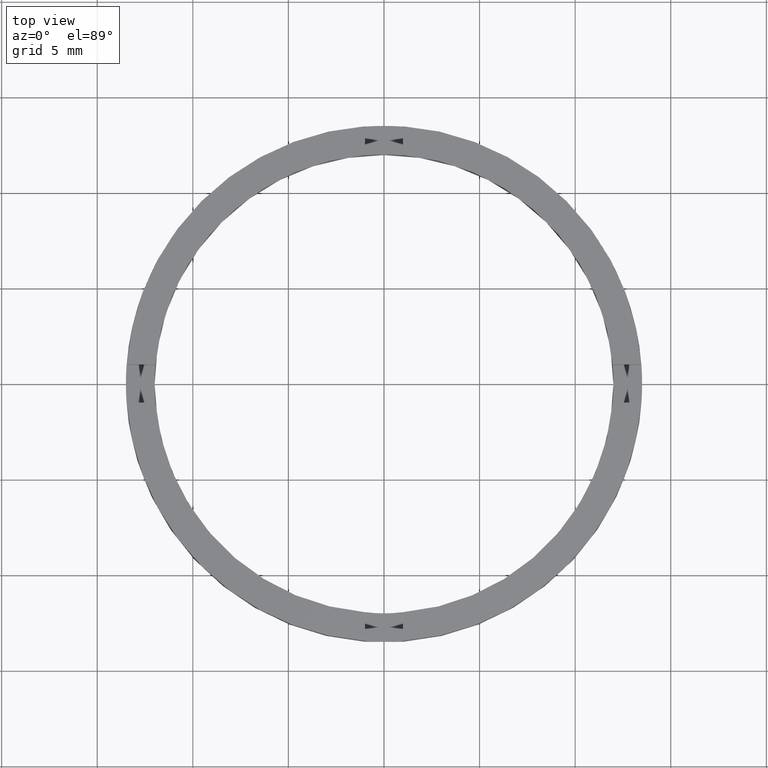
[diagram: clean part render]
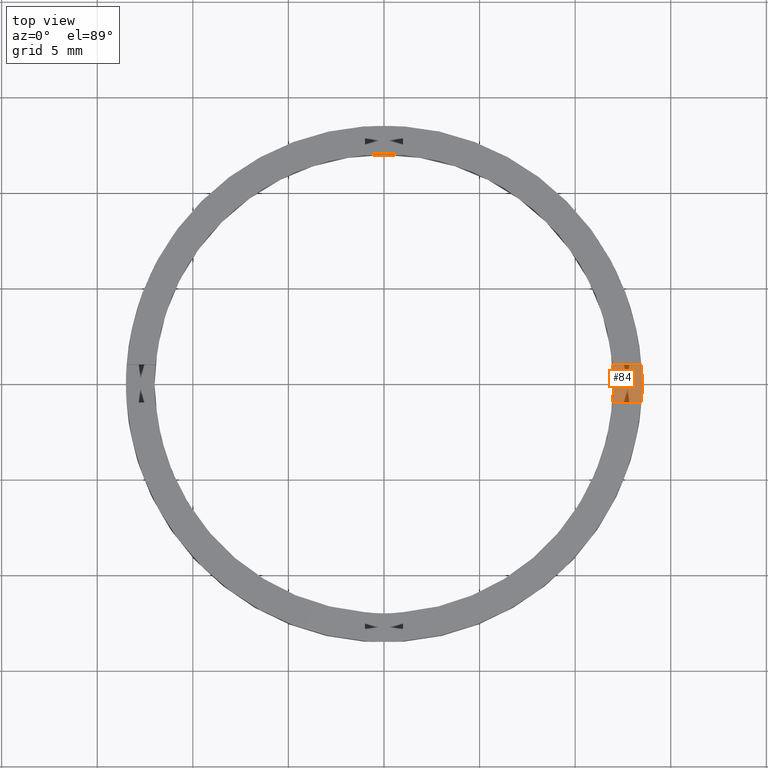
[diagram: same view with one face highlighted and labeled with its STEP entity id]
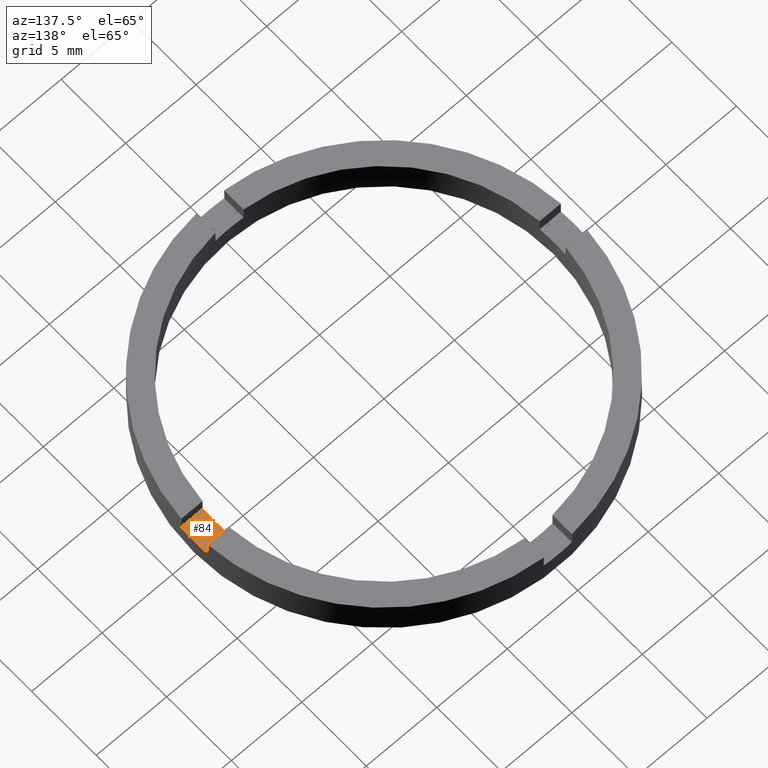
[diagram: same view with one face highlighted and labeled with its STEP entity id]
A machine part, top view. The second image highlights one B-rep face of the part: STEP entity #84.
A second angle (auxiliary view) of the same face is appended — the face is thin or edge-on in the first view.
In plain terms, the highlighted planar face has unit normal (0, 0, 1).
Its self-contained STEP definition (entity closure, byte-faithful):
#22 = LINE ( 'NONE', #324, #25 ) ;
#25 = VECTOR ( 'NONE', #353, 1000.000000000000000 ) ;
#59 = CARTESIAN_POINT ( 'NONE',  ( 13.50000000000000000, 1.653273178848926867E-15, 1.500000000000000000 ) ) ;
#65 = DIRECTION ( 'NONE',  ( 0.000000000000000000, 0.000000000000000000, 1.000000000000000000 ) ) ;
#84 = ADVANCED_FACE ( 'NONE', ( #683 ), #181, .T. ) ;
#86 = CARTESIAN_POINT ( 'NONE',  ( 3.499999999999999556, 0.9999999999998400169, 1.500000000000000000 ) ) ;
#97 = CARTESIAN_POINT ( 'NONE',  ( 11.95826074310141429, 0.9999999999998402389, 1.500000000000000000 ) ) ;
#147 = ORIENTED_EDGE ( 'NONE', *, *, #593, .T. ) ;
#181 = PLANE ( 'NONE',  #359 ) ;
#202 = AXIS2_PLACEMENT_3D ( 'NONE', #245, #301, #590 ) ;
#222 = CARTESIAN_POINT ( 'NONE',  ( 0.000000000000000000, 0.000000000000000000, 1.500000000000000000 ) ) ;
#245 = CARTESIAN_POINT ( 'NONE',  ( 0.000000000000000000, 0.000000000000000000, 1.500000000000000000 ) ) ;
#254 = CARTESIAN_POINT ( 'NONE',  ( 12.00000000000000178, 1.469576158976824144E-15, 1.500000000000000000 ) ) ;
#255 = VECTOR ( 'NONE', #384, 1000.000000000000000 ) ;
#265 = CIRCLE ( 'NONE', #202, 12.00000000000000178 ) ;
#292 = CIRCLE ( 'NONE', #641, 13.50000000000000000 ) ;
#301 = DIRECTION ( 'NONE',  ( 0.000000000000000000, 0.000000000000000000, 1.000000000000000000 ) ) ;
#312 = DIRECTION ( 'NONE',  ( 1.000000000000000000, 0.000000000000000000, -0.000000000000000000 ) ) ;
#314 = CIRCLE ( 'NONE', #559, 13.50000000000000000 ) ;
#324 = CARTESIAN_POINT ( 'NONE',  ( 3.499999999999999556, -1.000000000000160094, 1.500000000000000000 ) ) ;
#337 = CARTESIAN_POINT ( 'NONE',  ( 0.000000000000000000, 0.000000000000000000, 1.500000000000000000 ) ) ;
#341 = DIRECTION ( 'NONE',  ( 0.000000000000000000, 0.000000000000000000, 1.000000000000000000 ) ) ;
#349 = AXIS2_PLACEMENT_3D ( 'NONE', #337, #341, #540 ) ;
#353 = DIRECTION ( 'NONE',  ( 1.000000000000000000, 4.336808689942018352E-17, 0.000000000000000000 ) ) ;
#359 = AXIS2_PLACEMENT_3D ( 'NONE', #728, #538, #312 ) ;
#365 = EDGE_CURVE ( 'NONE', #647, #425, #498, .T. ) ;
#384 = DIRECTION ( 'NONE',  ( -1.000000000000000000, -4.336808689942018352E-17, -0.000000000000000000 ) ) ;
#412 = ORIENTED_EDGE ( 'NONE', *, *, #365, .T. ) ;
#425 = VERTEX_POINT ( 'NONE', #97 ) ;
#451 = VERTEX_POINT ( 'NONE', #254 ) ;
#453 = VERTEX_POINT ( 'NONE', #588 ) ;
#458 = CARTESIAN_POINT ( 'NONE',  ( 13.46291201783627045, 0.9999999999998404610, 1.500000000000000000 ) ) ;
#464 = ORIENTED_EDGE ( 'NONE', *, *, #762, .T. ) ;
#487 = EDGE_CURVE ( 'NONE', #453, #451, #765, .T. ) ;
#498 = LINE ( 'NONE', #86, #255 ) ;
#538 = DIRECTION ( 'NONE',  ( 0.000000000000000000, 0.000000000000000000, 1.000000000000000000 ) ) ;
#540 = DIRECTION ( 'NONE',  ( 1.000000000000000000, 0.000000000000000000, 0.000000000000000000 ) ) ;
#549 = CARTESIAN_POINT ( 'NONE',  ( 0.000000000000000000, 0.000000000000000000, 1.500000000000000000 ) ) ;
#558 = EDGE_CURVE ( 'NONE', #451, #425, #265, .T. ) ;
#559 = AXIS2_PLACEMENT_3D ( 'NONE', #549, #595, #745 ) ;
#588 = CARTESIAN_POINT ( 'NONE',  ( 11.95826074310138765, -1.000000000000159872, 1.500000000000000000 ) ) ;
#590 = DIRECTION ( 'NONE',  ( 1.000000000000000000, 0.000000000000000000, 0.000000000000000000 ) ) ;
#593 = EDGE_CURVE ( 'NONE', #717, #729, #314, .T. ) ;
#595 = DIRECTION ( 'NONE',  ( 0.000000000000000000, 0.000000000000000000, 1.000000000000000000 ) ) ;
#631 = EDGE_CURVE ( 'NONE', #453, #717, #22, .T. ) ;
#641 = AXIS2_PLACEMENT_3D ( 'NONE', #222, #65, #666 ) ;
#647 = VERTEX_POINT ( 'NONE', #458 ) ;
#666 = DIRECTION ( 'NONE',  ( 1.000000000000000000, 0.000000000000000000, 0.000000000000000000 ) ) ;
#678 = ORIENTED_EDGE ( 'NONE', *, *, #487, .F. ) ;
#683 = FACE_OUTER_BOUND ( 'NONE', #733, .T. ) ;
#688 = ORIENTED_EDGE ( 'NONE', *, *, #631, .T. ) ;
#717 = VERTEX_POINT ( 'NONE', #747 ) ;
#728 = CARTESIAN_POINT ( 'NONE',  ( 0.000000000000000000, 0.000000000000000000, 1.500000000000000000 ) ) ;
#729 = VERTEX_POINT ( 'NONE', #59 ) ;
#733 = EDGE_LOOP ( 'NONE', ( #147, #464, #412, #757, #678, #688 ) ) ;
#745 = DIRECTION ( 'NONE',  ( 1.000000000000000000, 0.000000000000000000, 0.000000000000000000 ) ) ;
#747 = CARTESIAN_POINT ( 'NONE',  ( 13.46291201783624736, -1.000000000000159650, 1.500000000000000000 ) ) ;
#757 = ORIENTED_EDGE ( 'NONE', *, *, #558, .F. ) ;
#762 = EDGE_CURVE ( 'NONE', #729, #647, #292, .T. ) ;
#765 = CIRCLE ( 'NONE', #349, 12.00000000000000178 ) ;